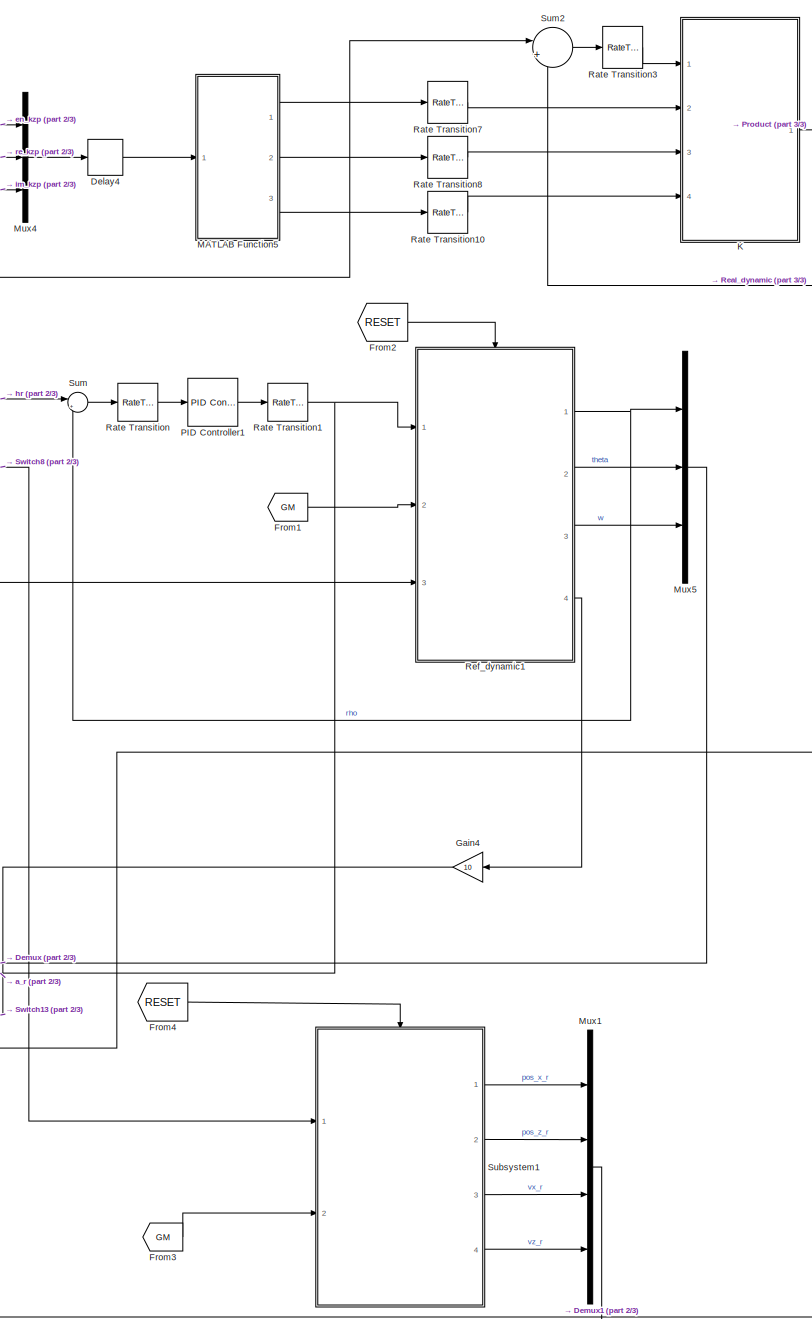
[diagram: root canvas - part 1/3, center side, full height]
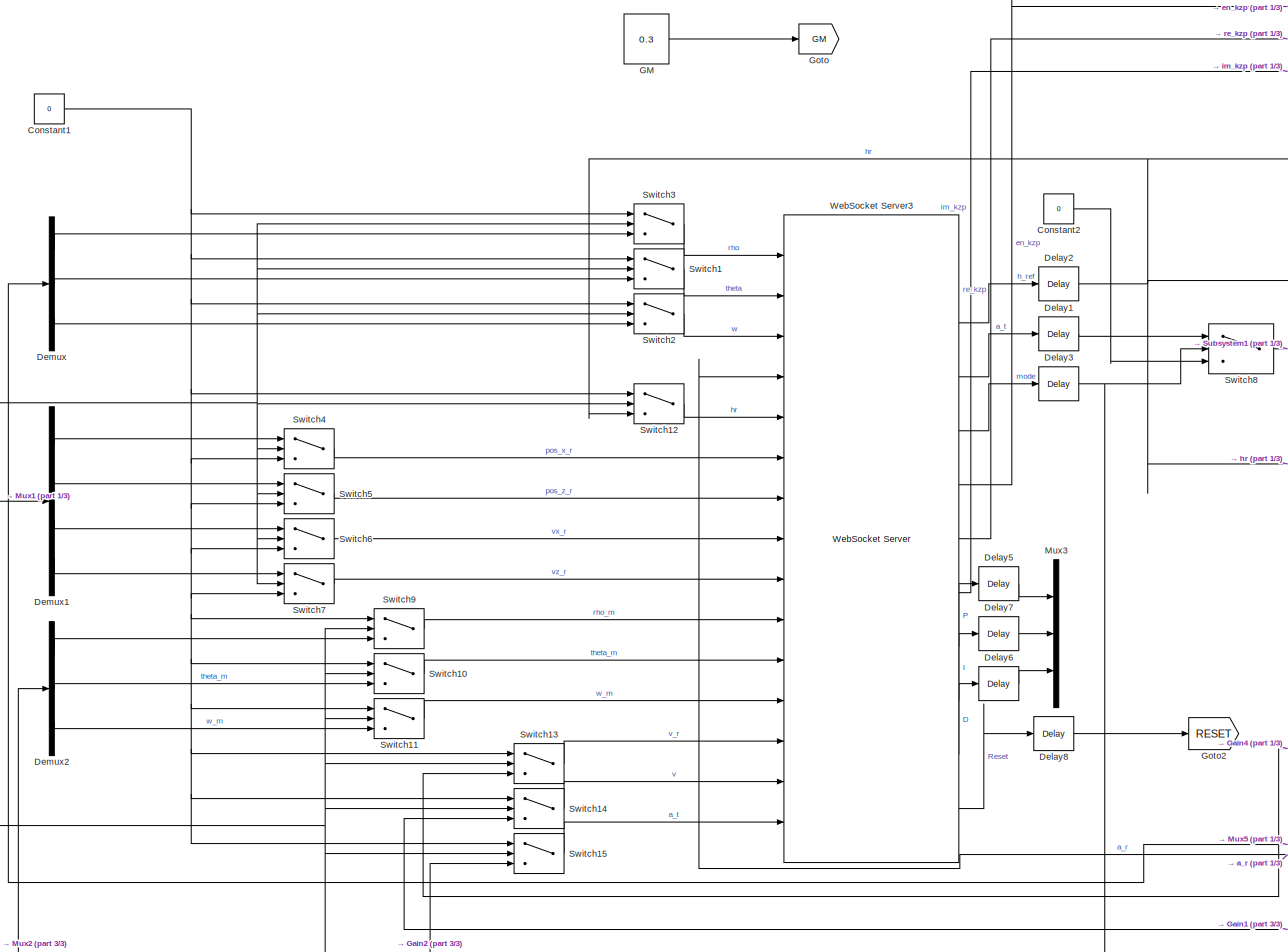
[diagram: root canvas - part 2/3, middle left region]
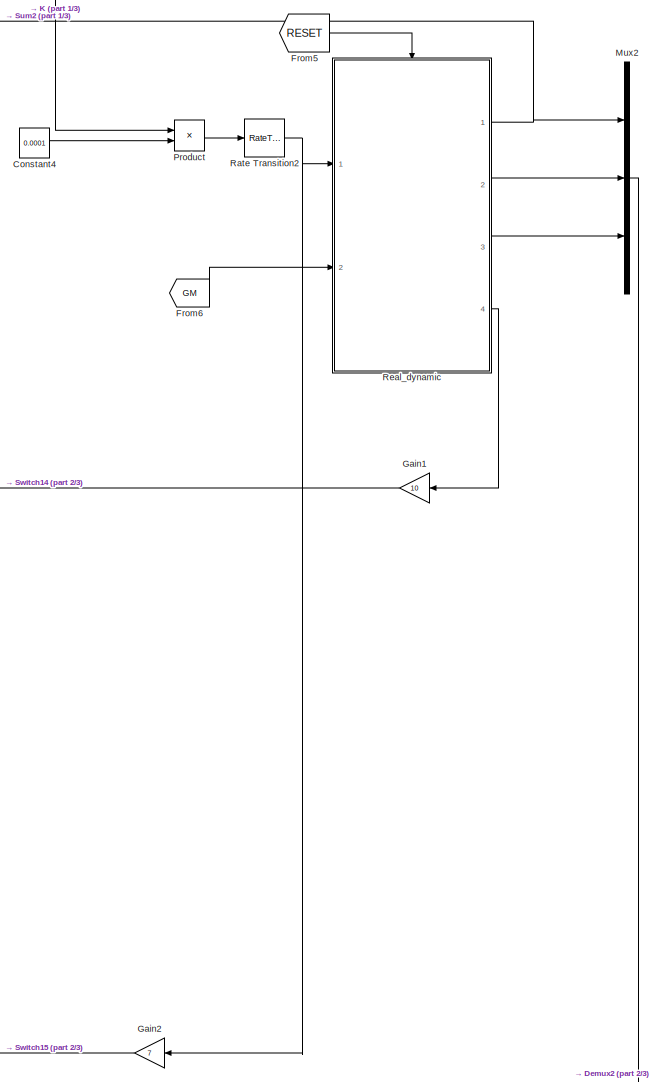
[diagram: root canvas - part 3/3, right side, full height]
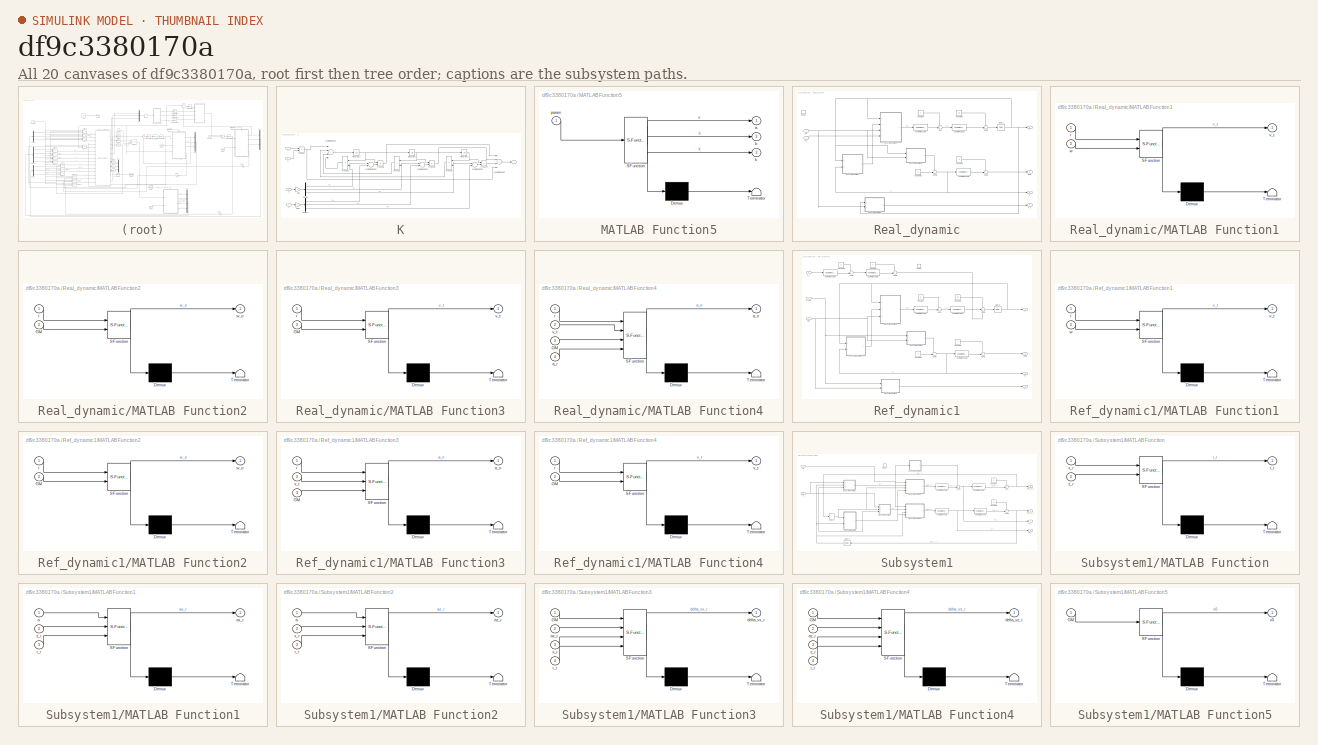
[diagram: thumbnail index - all 20 canvases of the model, root first then tree order]
MODEL slx_df9c3380170a
KIND model
CONFIG AbsTol = auto
CONFIG EnableMultiTasking = on
CONFIG FixedStep = 0.002
CONFIG MaxStep = auto
CONFIG MinStep = auto
CONFIG RelTol = 1e-3
CONFIG SampleTimeConstraint = Unconstrained
CONFIG Solver = FixedStepAuto
CONFIG SolverName = FixedStepAuto
CONFIG StartTime = 0.0
CONFIG StopTime = inf
BLOCK [Constant] Constant1
  Value = 0
BLOCK [Constant] Constant2
  Value = 0
BLOCK [Constant] Constant4
  Value = 0.0001
BLOCK [Delay] Delay1
  DelayLength = 1
  InitialCondition = 0
  InputPortMap = u0
  Ports = [1, 1]
BLOCK [Delay] Delay2
  DelayLength = 1
  InitialCondition = 36
  InputPortMap = u0
  Ports = [1, 1]
BLOCK [Delay] Delay3
  DelayLength = 1
  InitialCondition = 0
  InputPortMap = u0
  Ports = [1, 1]
BLOCK [Delay] Delay4
  DelayLength = 1
  InitialCondition = zeros(18,1)
  InputPortMap = u0
  Ports = [1, 1]
BLOCK [Delay] Delay5
  DelayLength = 1
  InitialCondition = 1
  InputPortMap = u0
  Ports = [1, 1]
BLOCK [Delay] Delay6
  DelayLength = 1
  InitialCondition = 1
  InputPortMap = u0
  Ports = [1, 1]
BLOCK [Delay] Delay7
  DelayLength = 1
  InitialCondition = 0
  InputPortMap = u0
  Ports = [1, 1]
BLOCK [Delay] Delay8
  DelayLength = 1
  InitialCondition = 0
  InputPortMap = u0
  Ports = [1, 1]
BLOCK [Demux] Demux
  DisplayOption = bar
  Outputs = 3
  Ports = [1, 3]
BLOCK [Demux] Demux1
  DisplayOption = bar
  Ports = [1, 4]
BLOCK [Demux] Demux2
  DisplayOption = bar
  Outputs = 3
  Ports = [1, 3]
BLOCK [From] From1
  GotoTag = GM
BLOCK [From] From2
  GotoTag = RESET
BLOCK [From] From3
  GotoTag = GM
BLOCK [From] From4
  GotoTag = RESET
BLOCK [From] From5
  GotoTag = RESET
BLOCK [From] From6
  GotoTag = GM
BLOCK [Constant] GM
  Value = 0.3
BLOCK [Gain] Gain1
  Gain = 10
  OutDataTypeStr = Inherit: Inherit via internal rule
  ParamDataTypeStr = Inherit: Inherit via internal rule
  SaturateOnIntegerOverflow = off
BLOCK [Gain] Gain2
  Gain = 7
  OutDataTypeStr = Inherit: Inherit via internal rule
  ParamDataTypeStr = Inherit: Inherit via internal rule
  SaturateOnIntegerOverflow = off
BLOCK [Gain] Gain4
  Gain = 10
  OutDataTypeStr = Inherit: Inherit via internal rule
  ParamDataTypeStr = Inherit: Inherit via internal rule
  SaturateOnIntegerOverflow = off
BLOCK [Goto] Goto
  GotoTag = GM
BLOCK [Goto] Goto2
  GotoTag = RESET
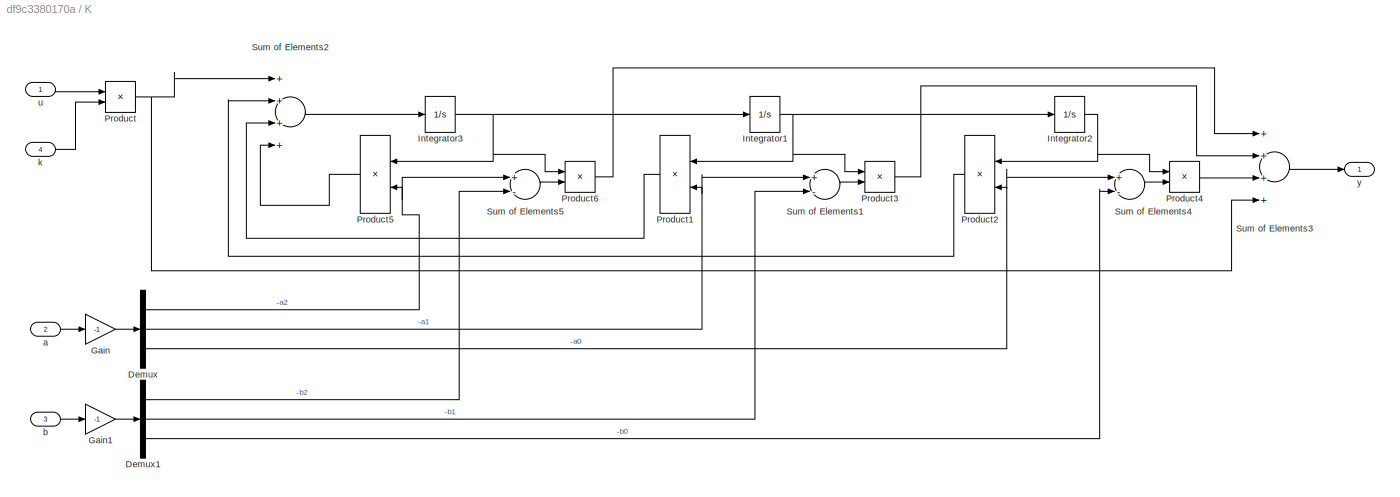
BLOCK [SubSystem] K
  Ports = [4, 1]
  RequestExecContextInheritance = off
  Variant = off
BLOCK [Demux] K/Demux
  DisplayOption = bar
  Outputs = 3
  Ports = [1, 3]
BLOCK [Demux] K/Demux1
  DisplayOption = bar
  Outputs = 3
  Ports = [1, 3]
BLOCK [Gain] K/Gain
  Gain = -1
  OutDataTypeStr = Inherit: Inherit via internal rule
  ParamDataTypeStr = Inherit: Inherit via internal rule
  SaturateOnIntegerOverflow = off
BLOCK [Gain] K/Gain1
  Gain = -1
  OutDataTypeStr = Inherit: Inherit via internal rule
  ParamDataTypeStr = Inherit: Inherit via internal rule
  SaturateOnIntegerOverflow = off
BLOCK [Integrator] K/Integrator1
  Ports = [1, 1]
BLOCK [Integrator] K/Integrator2
  Ports = [1, 1]
BLOCK [Integrator] K/Integrator3
  Ports = [1, 1]
BLOCK [Product] K/Product
  InputSameDT = off
  OutDataTypeStr = Inherit: Inherit via internal rule
  Ports = [2, 1]
  RndMeth = Floor
  SaturateOnIntegerOverflow = off
BLOCK [Product] K/Product1
  InputSameDT = off
  OutDataTypeStr = Inherit: Inherit via internal rule
  Ports = [2, 1]
  RndMeth = Floor
  SaturateOnIntegerOverflow = off
BLOCK [Product] K/Product2
  InputSameDT = off
  OutDataTypeStr = Inherit: Inherit via internal rule
  Ports = [2, 1]
  RndMeth = Floor
  SaturateOnIntegerOverflow = off
BLOCK [Product] K/Product3
  InputSameDT = off
  OutDataTypeStr = Inherit: Inherit via internal rule
  Ports = [2, 1]
  RndMeth = Floor
  SaturateOnIntegerOverflow = off
BLOCK [Product] K/Product4
  InputSameDT = off
  OutDataTypeStr = Inherit: Inherit via internal rule
  Ports = [2, 1]
  RndMeth = Floor
  SaturateOnIntegerOverflow = off
BLOCK [Product] K/Product5
  InputSameDT = off
  OutDataTypeStr = Inherit: Inherit via internal rule
  Ports = [2, 1]
  RndMeth = Floor
  SaturateOnIntegerOverflow = off
BLOCK [Product] K/Product6
  InputSameDT = off
  OutDataTypeStr = Inherit: Inherit via internal rule
  Ports = [2, 1]
  RndMeth = Floor
  SaturateOnIntegerOverflow = off
BLOCK [Sum] K/Sum of Elements1
  InputSameDT = off
  Inputs = +-
  OutDataTypeStr = Inherit: Inherit via internal rule
  Ports = [2, 1]
  SaturateOnIntegerOverflow = off
BLOCK [Sum] K/Sum of Elements2
  InputSameDT = off
  Inputs = ++++
  OutDataTypeStr = Inherit: Inherit via internal rule
  Ports = [4, 1]
  SaturateOnIntegerOverflow = off
BLOCK [Sum] K/Sum of Elements3
  InputSameDT = off
  Inputs = ++++
  OutDataTypeStr = Inherit: Inherit via internal rule
  Ports = [4, 1]
  SaturateOnIntegerOverflow = off
BLOCK [Sum] K/Sum of Elements4
  InputSameDT = off
  Inputs = +-
  OutDataTypeStr = Inherit: Inherit via internal rule
  Ports = [2, 1]
  SaturateOnIntegerOverflow = off
BLOCK [Sum] K/Sum of Elements5
  InputSameDT = off
  Inputs = +-
  OutDataTypeStr = Inherit: Inherit via internal rule
  Ports = [2, 1]
  SaturateOnIntegerOverflow = off
BLOCK [Inport] K/a
  IconDisplay = Port number
  Port = 2
BLOCK [Inport] K/b
  IconDisplay = Port number
  Port = 3
BLOCK [Inport] K/k
  IconDisplay = Port number
  Port = 4
BLOCK [Inport] K/u
  IconDisplay = Port number
BLOCK [Outport] K/y
  IconDisplay = Port number
BLOCK [SubSystem] MATLAB Function5
  ErrorFcn = Stateflow.Translate.translate
  PermitHierarchicalResolution = ExplicitOnly
  Ports = [1, 3]
  RequestExecContextInheritance = off
  SFBlockType = MATLAB Function
  TreatAsAtomicUnit = on
  Variant = off
BLOCK [Demux] MATLAB Function5/ Demux 
  Outputs = 1
  Ports = [1, 1]
BLOCK [S-Function] MATLAB Function5/ SFunction 
  EnableBusSupport = on
  FunctionName = sf_sfun
  PortCounts = [1 4]
  Ports = [1, 4]
  SFcnIsStateOwnerBlock = off
  SFunctionDeploymentMode = off
  Tag = Stateflow S-Function satellite_final9 25
BLOCK [Terminator] MATLAB Function5/ Terminator 
BLOCK [Outport] MATLAB Function5/a
  IconDisplay = Port number
BLOCK [Outport] MATLAB Function5/b
  IconDisplay = Port number
  Port = 2
BLOCK [Outport] MATLAB Function5/k
  IconDisplay = Port number
  Port = 3
BLOCK [Inport] MATLAB Function5/param
  IconDisplay = Port number
BLOCK [Mux] Mux1
  DisplayOption = bar
  Ports = [4, 1]
BLOCK [Mux] Mux2
  DisplayOption = bar
  Inputs = 3
  Ports = [3, 1]
BLOCK [Mux] Mux3
  DisplayOption = bar
  Inputs = 3
  Ports = [3, 1]
BLOCK [Mux] Mux4
  DisplayOption = bar
  Inputs = 3
  Ports = [3, 1]
BLOCK [Mux] Mux5
  DisplayOption = bar
  Inputs = 3
  Ports = [3, 1]
BLOCK [Reference] PID Controller1  REF=simulink/Continuous/PID Controller
  Ports = [1, 1]
  SourceBlock = simulink/Continuous/PID Controller
  SourceProductBaseCode = SL
  SourceProductName = Simulink
  SourceType = PID 1dof
BLOCK [Product] Product
  InputSameDT = off
  OutDataTypeStr = Inherit: Inherit via internal rule
  Ports = [2, 1]
  RndMeth = Floor
  SaturateOnIntegerOverflow = off
BLOCK [RateTransition] Rate Transition
BLOCK [RateTransition] Rate Transition1
BLOCK [RateTransition] Rate Transition10
BLOCK [RateTransition] Rate Transition2
BLOCK [RateTransition] Rate Transition3
BLOCK [RateTransition] Rate Transition7
BLOCK [RateTransition] Rate Transition8
BLOCK [SubSystem] Real_dynamic
  Ports = [2, 4, 0, 0, 0, 0, 0, 0, 1]
  RequestExecContextInheritance = off
  Variant = off
BLOCK [Constant] Real_dynamic/Constant
  Value = 0
BLOCK [Constant] Real_dynamic/Constant1
  Value = 36
BLOCK [Constant] Real_dynamic/Constant2
  Value = 0
BLOCK [Constant] Real_dynamic/Constant5
  Value = 0
BLOCK [Reference] Real_dynamic/Cumulative Sum1  REF=dspmathops/Cumulative
Sum
  Ports = [1, 1]
  SourceBlock = dspmathops/Cumulative\nSum
  SourceProductBaseCode = DS
  SourceProductName = DSP System Toolbox
  SourceType = Cumulative Sum
  UserDataPersistent = on
BLOCK [Reference] Real_dynamic/Cumulative Sum2  REF=dspmathops/Cumulative
Sum
  Ports = [1, 1]
  SourceBlock = dspmathops/Cumulative\nSum
  SourceProductBaseCode = DS
  SourceProductName = DSP System Toolbox
  SourceType = Cumulative Sum
  UserDataPersistent = on
BLOCK [Reference] Real_dynamic/Cumulative Sum3  REF=dspmathops/Cumulative
Sum
  Ports = [1, 1]
  SourceBlock = dspmathops/Cumulative\nSum
  SourceProductBaseCode = DS
  SourceProductName = DSP System Toolbox
  SourceType = Cumulative Sum
  UserDataPersistent = on
BLOCK [Delay] Real_dynamic/Delay2
  DelayLength = 1
  InitialCondition = 36
  InputPortMap = u0
  Ports = [1, 1]
BLOCK [Inport] Real_dynamic/GM
  IconDisplay = Port number
  Port = 2
BLOCK [SubSystem] Real_dynamic/MATLAB Function1
  ErrorFcn = Stateflow.Translate.translate
  PermitHierarchicalResolution = ExplicitOnly
  Ports = [2, 1]
  RequestExecContextInheritance = off
  SFBlockType = MATLAB Function
  TreatAsAtomicUnit = on
  Variant = off
BLOCK [Demux] Real_dynamic/MATLAB Function1/ Demux 
  Outputs = 1
  Ports = [1, 1]
BLOCK [S-Function] Real_dynamic/MATLAB Function1/ SFunction 
  EnableBusSupport = on
  FunctionName = sf_sfun
  PortCounts = [2 2]
  Ports = [2, 2]
  SFcnIsStateOwnerBlock = off
  SFunctionDeploymentMode = off
  Tag = Stateflow S-Function satellite_final9 12
BLOCK [Terminator] Real_dynamic/MATLAB Function1/ Terminator 
BLOCK [Inport] Real_dynamic/MATLAB Function1/r
  IconDisplay = Port number
BLOCK [Outport] Real_dynamic/MATLAB Function1/v_t
  IconDisplay = Port number
BLOCK [Inport] Real_dynamic/MATLAB Function1/w
  IconDisplay = Port number
  Port = 2
BLOCK [SubSystem] Real_dynamic/MATLAB Function2
  ErrorFcn = Stateflow.Translate.translate
  PermitHierarchicalResolution = ExplicitOnly
  Ports = [2, 1]
  RequestExecContextInheritance = off
  SFBlockType = MATLAB Function
  TreatAsAtomicUnit = on
  Variant = off
BLOCK [Demux] Real_dynamic/MATLAB Function2/ Demux 
  Outputs = 1
  Ports = [1, 1]
BLOCK [S-Function] Real_dynamic/MATLAB Function2/ SFunction 
  EnableBusSupport = on
  FunctionName = sf_sfun
  PortCounts = [2 2]
  Ports = [2, 2]
  SFcnIsStateOwnerBlock = off
  SFunctionDeploymentMode = off
  Tag = Stateflow S-Function satellite_final9 13
BLOCK [Terminator] Real_dynamic/MATLAB Function2/ Terminator 
BLOCK [Inport] Real_dynamic/MATLAB Function2/GM
  IconDisplay = Port number
  Port = 2
BLOCK [Inport] Real_dynamic/MATLAB Function2/r
  IconDisplay = Port number
BLOCK [Outport] Real_dynamic/MATLAB Function2/w_o
  IconDisplay = Port number
BLOCK [SubSystem] Real_dynamic/MATLAB Function3
  ErrorFcn = Stateflow.Translate.translate
  PermitHierarchicalResolution = ExplicitOnly
  Ports = [2, 1]
  RequestExecContextInheritance = off
  SFBlockType = MATLAB Function
  TreatAsAtomicUnit = on
  Variant = off
BLOCK [Demux] Real_dynamic/MATLAB Function3/ Demux 
  Outputs = 1
  Ports = [1, 1]
BLOCK [S-Function] Real_dynamic/MATLAB Function3/ SFunction 
  EnableBusSupport = on
  FunctionName = sf_sfun
  PortCounts = [2 2]
  Ports = [2, 2]
  SFcnIsStateOwnerBlock = off
  SFunctionDeploymentMode = off
  Tag = Stateflow S-Function satellite_final9 5
BLOCK [Terminator] Real_dynamic/MATLAB Function3/ Terminator 
BLOCK [Inport] Real_dynamic/MATLAB Function3/GM
  IconDisplay = Port number
  Port = 2
BLOCK [Inport] Real_dynamic/MATLAB Function3/r
  IconDisplay = Port number
BLOCK [Outport] Real_dynamic/MATLAB Function3/v_t
  IconDisplay = Port number
BLOCK [SubSystem] Real_dynamic/MATLAB Function4
  ErrorFcn = Stateflow.Translate.translate
  PermitHierarchicalResolution = ExplicitOnly
  Ports = [4, 1]
  RequestExecContextInheritance = off
  SFBlockType = MATLAB Function
  TreatAsAtomicUnit = on
  Variant = off
BLOCK [Demux] Real_dynamic/MATLAB Function4/ Demux 
  Outputs = 1
  Ports = [1, 1]
BLOCK [S-Function] Real_dynamic/MATLAB Function4/ SFunction 
  EnableBusSupport = on
  FunctionName = sf_sfun
  PortCounts = [4 2]
  Ports = [4, 2]
  SFcnIsStateOwnerBlock = off
  SFunctionDeploymentMode = off
  Tag = Stateflow S-Function satellite_final9 1
BLOCK [Terminator] Real_dynamic/MATLAB Function4/ Terminator 
BLOCK [Inport] Real_dynamic/MATLAB Function4/GM
  IconDisplay = Port number
  Port = 3
BLOCK [Outport] Real_dynamic/MATLAB Function4/a_n
  IconDisplay = Port number
BLOCK [Inport] Real_dynamic/MATLAB Function4/a_r
  IconDisplay = Port number
  Port = 4
BLOCK [Inport] Real_dynamic/MATLAB Function4/r
  IconDisplay = Port number
BLOCK [Inport] Real_dynamic/MATLAB Function4/v_t
  IconDisplay = Port number
  Port = 2
BLOCK [ResetPort] Real_dynamic/Reset
  DisableCoverage = on
  ResetTriggerType = either
BLOCK [Sum] Real_dynamic/Sum
  IconShape = round
  InputSameDT = off
  Inputs = ++|
  OutDataTypeStr = Inherit: Inherit via internal rule
  Ports = [2, 1]
  SaturateOnIntegerOverflow = off
BLOCK [Sum] Real_dynamic/Sum1
  IconShape = round
  InputSameDT = off
  Inputs = ++|
  OutDataTypeStr = Inherit: Inherit via internal rule
  Ports = [2, 1]
  SaturateOnIntegerOverflow = off
BLOCK [Sum] Real_dynamic/Sum2
  IconShape = round
  InputSameDT = off
  Inputs = ++|
  OutDataTypeStr = Inherit: Inherit via internal rule
  Ports = [2, 1]
  SaturateOnIntegerOverflow = off
BLOCK [Sum] Real_dynamic/Sum3
  IconShape = round
  InputSameDT = off
  Inputs = ++|
  OutDataTypeStr = Inherit: Inherit via internal rule
  Ports = [2, 1]
  SaturateOnIntegerOverflow = off
BLOCK [Inport] Real_dynamic/a_r
  IconDisplay = Port number
BLOCK [Outport] Real_dynamic/r
  IconDisplay = Port number
BLOCK [Outport] Real_dynamic/theta
  IconDisplay = Port number
  Port = 2
BLOCK [Outport] Real_dynamic/v_t
  IconDisplay = Port number
  Port = 4
BLOCK [Outport] Real_dynamic/w
  IconDisplay = Port number
  Port = 3
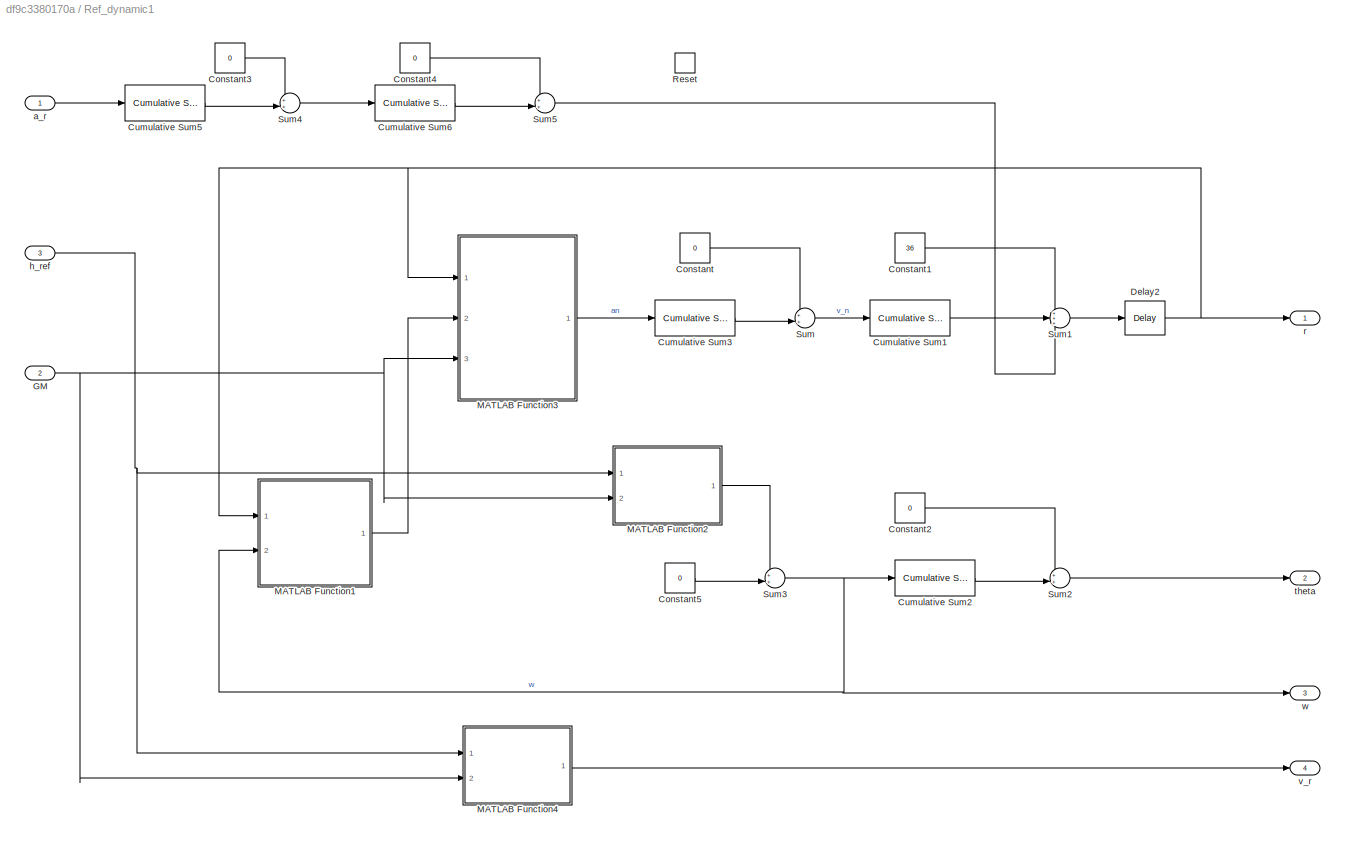
BLOCK [SubSystem] Ref_dynamic1
  Ports = [3, 4, 0, 0, 0, 0, 0, 0, 1]
  RequestExecContextInheritance = off
  Variant = off
BLOCK [Constant] Ref_dynamic1/Constant
  Value = 0
BLOCK [Constant] Ref_dynamic1/Constant1
  Value = 36
BLOCK [Constant] Ref_dynamic1/Constant2
  Value = 0
BLOCK [Constant] Ref_dynamic1/Constant3
  Value = 0
BLOCK [Constant] Ref_dynamic1/Constant4
  Value = 0
BLOCK [Constant] Ref_dynamic1/Constant5
  Value = 0
BLOCK [Reference] Ref_dynamic1/Cumulative Sum1  REF=dspmathops/Cumulative
Sum
  Ports = [1, 1]
  SourceBlock = dspmathops/Cumulative\nSum
  SourceProductBaseCode = DS
  SourceProductName = DSP System Toolbox
  SourceType = Cumulative Sum
  UserDataPersistent = on
BLOCK [Reference] Ref_dynamic1/Cumulative Sum2  REF=dspmathops/Cumulative
Sum
  Ports = [1, 1]
  SourceBlock = dspmathops/Cumulative\nSum
  SourceProductBaseCode = DS
  SourceProductName = DSP System Toolbox
  SourceType = Cumulative Sum
  UserDataPersistent = on
BLOCK [Reference] Ref_dynamic1/Cumulative Sum3  REF=dspmathops/Cumulative
Sum
  Ports = [1, 1]
  SourceBlock = dspmathops/Cumulative\nSum
  SourceProductBaseCode = DS
  SourceProductName = DSP System Toolbox
  SourceType = Cumulative Sum
  UserDataPersistent = on
BLOCK [Reference] Ref_dynamic1/Cumulative Sum5  REF=dspmathops/Cumulative
Sum
  Ports = [1, 1]
  SourceBlock = dspmathops/Cumulative\nSum
  SourceProductBaseCode = DS
  SourceProductName = DSP System Toolbox
  SourceType = Cumulative Sum
  UserDataPersistent = on
BLOCK [Reference] Ref_dynamic1/Cumulative Sum6  REF=dspmathops/Cumulative
Sum
  Ports = [1, 1]
  SourceBlock = dspmathops/Cumulative\nSum
  SourceProductBaseCode = DS
  SourceProductName = DSP System Toolbox
  SourceType = Cumulative Sum
  UserDataPersistent = on
BLOCK [Delay] Ref_dynamic1/Delay2
  DelayLength = 1
  InitialCondition = 36
  InputPortMap = u0
  Ports = [1, 1]
BLOCK [Inport] Ref_dynamic1/GM
  IconDisplay = Port number
  Port = 2
BLOCK [SubSystem] Ref_dynamic1/MATLAB Function1
  ErrorFcn = Stateflow.Translate.translate
  PermitHierarchicalResolution = ExplicitOnly
  Ports = [2, 1]
  RequestExecContextInheritance = off
  SFBlockType = MATLAB Function
  TreatAsAtomicUnit = on
  Variant = off
BLOCK [Demux] Ref_dynamic1/MATLAB Function1/ Demux 
  Outputs = 1
  Ports = [1, 1]
BLOCK [S-Function] Ref_dynamic1/MATLAB Function1/ SFunction 
  EnableBusSupport = on
  FunctionName = sf_sfun
  PortCounts = [2 2]
  Ports = [2, 2]
  SFcnIsStateOwnerBlock = off
  SFunctionDeploymentMode = off
  Tag = Stateflow S-Function satellite_final9 3
BLOCK [Terminator] Ref_dynamic1/MATLAB Function1/ Terminator 
BLOCK [Inport] Ref_dynamic1/MATLAB Function1/r
  IconDisplay = Port number
BLOCK [Outport] Ref_dynamic1/MATLAB Function1/v_t
  IconDisplay = Port number
BLOCK [Inport] Ref_dynamic1/MATLAB Function1/w
  IconDisplay = Port number
  Port = 2
BLOCK [SubSystem] Ref_dynamic1/MATLAB Function2
  ErrorFcn = Stateflow.Translate.translate
  PermitHierarchicalResolution = ExplicitOnly
  Ports = [2, 1]
  RequestExecContextInheritance = off
  SFBlockType = MATLAB Function
  TreatAsAtomicUnit = on
  Variant = off
BLOCK [Demux] Ref_dynamic1/MATLAB Function2/ Demux 
  Outputs = 1
  Ports = [1, 1]
BLOCK [S-Function] Ref_dynamic1/MATLAB Function2/ SFunction 
  EnableBusSupport = on
  FunctionName = sf_sfun
  PortCounts = [2 2]
  Ports = [2, 2]
  SFcnIsStateOwnerBlock = off
  SFunctionDeploymentMode = off
  Tag = Stateflow S-Function satellite_final9 4
BLOCK [Terminator] Ref_dynamic1/MATLAB Function2/ Terminator 
BLOCK [Inport] Ref_dynamic1/MATLAB Function2/GM
  IconDisplay = Port number
  Port = 2
BLOCK [Inport] Ref_dynamic1/MATLAB Function2/r
  IconDisplay = Port number
BLOCK [Outport] Ref_dynamic1/MATLAB Function2/w_o
  IconDisplay = Port number
BLOCK [SubSystem] Ref_dynamic1/MATLAB Function3
  ErrorFcn = Stateflow.Translate.translate
  PermitHierarchicalResolution = ExplicitOnly
  Ports = [3, 1]
  RequestExecContextInheritance = off
  SFBlockType = MATLAB Function
  TreatAsAtomicUnit = on
  Variant = off
BLOCK [Demux] Ref_dynamic1/MATLAB Function3/ Demux 
  Outputs = 1
  Ports = [1, 1]
BLOCK [S-Function] Ref_dynamic1/MATLAB Function3/ SFunction 
  EnableBusSupport = on
  FunctionName = sf_sfun
  PortCounts = [3 2]
  Ports = [3, 2]
  SFcnIsStateOwnerBlock = off
  SFunctionDeploymentMode = off
  Tag = Stateflow S-Function satellite_final9 18
BLOCK [Terminator] Ref_dynamic1/MATLAB Function3/ Terminator 
BLOCK [Inport] Ref_dynamic1/MATLAB Function3/GM
  IconDisplay = Port number
  Port = 3
BLOCK [Outport] Ref_dynamic1/MATLAB Function3/a_n
  IconDisplay = Port number
BLOCK [Inport] Ref_dynamic1/MATLAB Function3/r
  IconDisplay = Port number
BLOCK [Inport] Ref_dynamic1/MATLAB Function3/v_t
  IconDisplay = Port number
  Port = 2
BLOCK [SubSystem] Ref_dynamic1/MATLAB Function4
  ErrorFcn = Stateflow.Translate.translate
  PermitHierarchicalResolution = ExplicitOnly
  Ports = [2, 1]
  RequestExecContextInheritance = off
  SFBlockType = MATLAB Function
  TreatAsAtomicUnit = on
  Variant = off
BLOCK [Demux] Ref_dynamic1/MATLAB Function4/ Demux 
  Outputs = 1
  Ports = [1, 1]
BLOCK [S-Function] Ref_dynamic1/MATLAB Function4/ SFunction 
  EnableBusSupport = on
  FunctionName = sf_sfun
  PortCounts = [2 2]
  Ports = [2, 2]
  SFcnIsStateOwnerBlock = off
  SFunctionDeploymentMode = off
  Tag = Stateflow S-Function satellite_final9 2
BLOCK [Terminator] Ref_dynamic1/MATLAB Function4/ Terminator 
BLOCK [Inport] Ref_dynamic1/MATLAB Function4/GM
  IconDisplay = Port number
  Port = 2
BLOCK [Inport] Ref_dynamic1/MATLAB Function4/r
  IconDisplay = Port number
BLOCK [Outport] Ref_dynamic1/MATLAB Function4/v_t
  IconDisplay = Port number
BLOCK [ResetPort] Ref_dynamic1/Reset
  DisableCoverage = on
  ResetTriggerType = either
BLOCK [Sum] Ref_dynamic1/Sum
  IconShape = round
  InputSameDT = off
  Inputs = ++|
  OutDataTypeStr = Inherit: Inherit via internal rule
  Ports = [2, 1]
  SaturateOnIntegerOverflow = off
BLOCK [Sum] Ref_dynamic1/Sum1
  IconShape = round
  InputSameDT = off
  Inputs = +++
  OutDataTypeStr = Inherit: Inherit via internal rule
  Ports = [3, 1]
  SaturateOnIntegerOverflow = off
BLOCK [Sum] Ref_dynamic1/Sum2
  IconShape = round
  InputSameDT = off
  Inputs = ++|
  OutDataTypeStr = Inherit: Inherit via internal rule
  Ports = [2, 1]
  SaturateOnIntegerOverflow = off
BLOCK [Sum] Ref_dynamic1/Sum3
  IconShape = round
  InputSameDT = off
  Inputs = ++|
  OutDataTypeStr = Inherit: Inherit via internal rule
  Ports = [2, 1]
  SaturateOnIntegerOverflow = off
BLOCK [Sum] Ref_dynamic1/Sum4
  IconShape = round
  InputSameDT = off
  Inputs = ++|
  OutDataTypeStr = Inherit: Inherit via internal rule
  Ports = [2, 1]
  SaturateOnIntegerOverflow = off
BLOCK [Sum] Ref_dynamic1/Sum5
  IconShape = round
  InputSameDT = off
  Inputs = ++|
  OutDataTypeStr = Inherit: Inherit via internal rule
  Ports = [2, 1]
  SaturateOnIntegerOverflow = off
BLOCK [Inport] Ref_dynamic1/a_r
  IconDisplay = Port number
BLOCK [Inport] Ref_dynamic1/h_ref
  IconDisplay = Port number
  Port = 3
BLOCK [Outport] Ref_dynamic1/r
  IconDisplay = Port number
BLOCK [Outport] Ref_dynamic1/theta
  IconDisplay = Port number
  Port = 2
BLOCK [Outport] Ref_dynamic1/v_r
  IconDisplay = Port number
  Port = 4
BLOCK [Outport] Ref_dynamic1/w
  IconDisplay = Port number
  Port = 3
BLOCK [SubSystem] Subsystem1
  Ports = [2, 4, 0, 0, 0, 0, 0, 0, 1]
  RequestExecContextInheritance = off
  Variant = off
BLOCK [Constant] Subsystem1/Constant
  Value = 0
BLOCK [Constant] Subsystem1/Constant1
  Value = 36
BLOCK [Reference] Subsystem1/Cumulative Sum1  REF=dspmathops/Cumulative
Sum
  Ports = [1, 1]
  SourceBlock = dspmathops/Cumulative\nSum
  SourceProductBaseCode = DS
  SourceProductName = DSP System Toolbox
  SourceType = Cumulative Sum
  UserDataPersistent = on
BLOCK [Reference] Subsystem1/Cumulative Sum2  REF=dspmathops/Cumulative
Sum
  Ports = [1, 1]
  SourceBlock = dspmathops/Cumulative\nSum
  SourceProductBaseCode = DS
  SourceProductName = DSP System Toolbox
  SourceType = Cumulative Sum
  UserDataPersistent = on
BLOCK [Reference] Subsystem1/Cumulative Sum3  REF=dspmathops/Cumulative
Sum
  Ports = [1, 1]
  SourceBlock = dspmathops/Cumulative\nSum
  SourceProductBaseCode = DS
  SourceProductName = DSP System Toolbox
  SourceType = Cumulative Sum
  UserDataPersistent = on
BLOCK [Reference] Subsystem1/Cumulative Sum4  REF=dspmathops/Cumulative
Sum
  Ports = [1, 1]
  SourceBlock = dspmathops/Cumulative\nSum
  SourceProductBaseCode = DS
  SourceProductName = DSP System Toolbox
  SourceType = Cumulative Sum
  UserDataPersistent = on
BLOCK [Delay] Subsystem1/Delay1
  DelayLength = 1
  InitialCondition = 0
  InputPortMap = u0
  Ports = [1, 1]
BLOCK [Delay] Subsystem1/Delay2
  DelayLength = 1
  InitialCondition = 36
  InputPortMap = u0
  Ports = [1, 1]
BLOCK [Inport] Subsystem1/GM
  IconDisplay = Port number
  Port = 2
BLOCK [SubSystem] Subsystem1/MATLAB Function
  ErrorFcn = Stateflow.Translate.translate
  PermitHierarchicalResolution = ExplicitOnly
  Ports = [2, 1]
  RequestExecContextInheritance = off
  SFBlockType = MATLAB Function
  TreatAsAtomicUnit = on
  Variant = off
BLOCK [Demux] Subsystem1/MATLAB Function/ Demux 
  Outputs = 1
  Ports = [1, 1]
BLOCK [S-Function] Subsystem1/MATLAB Function/ SFunction 
  EnableBusSupport = on
  FunctionName = sf_sfun
  PortCounts = [2 2]
  Ports = [2, 2]
  SFcnIsStateOwnerBlock = off
  SFunctionDeploymentMode = off
  Tag = Stateflow S-Function satellite_final9 19
BLOCK [Terminator] Subsystem1/MATLAB Function/ Terminator 
BLOCK [Outport] Subsystem1/MATLAB Function/r_r
  IconDisplay = Port number
BLOCK [Inport] Subsystem1/MATLAB Function/x_r
  IconDisplay = Port number
BLOCK [Inport] Subsystem1/MATLAB Function/z_r
  IconDisplay = Port number
  Port = 2
BLOCK [SubSystem] Subsystem1/MATLAB Function1
  ErrorFcn = Stateflow.Translate.translate
  PermitHierarchicalResolution = ExplicitOnly
  Ports = [3, 1]
  RequestExecContextInheritance = off
  SFBlockType = MATLAB Function
  TreatAsAtomicUnit = on
  Variant = off
BLOCK [Demux] Subsystem1/MATLAB Function1/ Demux 
  Outputs = 1
  Ports = [1, 1]
BLOCK [S-Function] Subsystem1/MATLAB Function1/ SFunction 
  EnableBusSupport = on
  FunctionName = sf_sfun
  PortCounts = [3 2]
  Ports = [3, 2]
  SFcnIsStateOwnerBlock = off
  SFunctionDeploymentMode = off
  Tag = Stateflow S-Function satellite_final9 20
BLOCK [Terminator] Subsystem1/MATLAB Function1/ Terminator 
BLOCK [Inport] Subsystem1/MATLAB Function1/a
  IconDisplay = Port number
BLOCK [Outport] Subsystem1/MATLAB Function1/ax_r
  IconDisplay = Port number
BLOCK [Inport] Subsystem1/MATLAB Function1/r_r
  IconDisplay = Port number
  Port = 3
BLOCK [Inport] Subsystem1/MATLAB Function1/z_r
  IconDisplay = Port number
  Port = 2
BLOCK [SubSystem] Subsystem1/MATLAB Function2
  ErrorFcn = Stateflow.Translate.translate
  PermitHierarchicalResolution = ExplicitOnly
  Ports = [3, 1]
  RequestExecContextInheritance = off
  SFBlockType = MATLAB Function
  TreatAsAtomicUnit = on
  Variant = off
BLOCK [Demux] Subsystem1/MATLAB Function2/ Demux 
  Outputs = 1
  Ports = [1, 1]
BLOCK [S-Function] Subsystem1/MATLAB Function2/ SFunction 
  EnableBusSupport = on
  FunctionName = sf_sfun
  PortCounts = [3 2]
  Ports = [3, 2]
  SFcnIsStateOwnerBlock = off
  SFunctionDeploymentMode = off
  Tag = Stateflow S-Function satellite_final9 21
BLOCK [Terminator] Subsystem1/MATLAB Function2/ Terminator 
BLOCK [Inport] Subsystem1/MATLAB Function2/a
  IconDisplay = Port number
BLOCK [Outport] Subsystem1/MATLAB Function2/az_r
  IconDisplay = Port number
BLOCK [Inport] Subsystem1/MATLAB Function2/r_r
  IconDisplay = Port number
  Port = 3
BLOCK [Inport] Subsystem1/MATLAB Function2/x_r
  IconDisplay = Port number
  Port = 2
BLOCK [SubSystem] Subsystem1/MATLAB Function3
  ErrorFcn = Stateflow.Translate.translate
  PermitHierarchicalResolution = ExplicitOnly
  Ports = [4, 1]
  RequestExecContextInheritance = off
  SFBlockType = MATLAB Function
  TreatAsAtomicUnit = on
  Variant = off
BLOCK [Demux] Subsystem1/MATLAB Function3/ Demux 
  Outputs = 1
  Ports = [1, 1]
BLOCK [S-Function] Subsystem1/MATLAB Function3/ SFunction 
  EnableBusSupport = on
  FunctionName = sf_sfun
  PortCounts = [4 2]
  Ports = [4, 2]
  SFcnIsStateOwnerBlock = off
  SFunctionDeploymentMode = off
  Tag = Stateflow S-Function satellite_final9 22
BLOCK [Terminator] Subsystem1/MATLAB Function3/ Terminator 
BLOCK [Inport] Subsystem1/MATLAB Function3/GM
  IconDisplay = Port number
BLOCK [Inport] Subsystem1/MATLAB Function3/ax_r
  IconDisplay = Port number
  Port = 2
BLOCK [Outport] Subsystem1/MATLAB Function3/delta_vx_r
  IconDisplay = Port number
BLOCK [Inport] Subsystem1/MATLAB Function3/r_r
  IconDisplay = Port number
  Port = 4
BLOCK [Inport] Subsystem1/MATLAB Function3/x_r
  IconDisplay = Port number
  Port = 3
BLOCK [SubSystem] Subsystem1/MATLAB Function4
  ErrorFcn = Stateflow.Translate.translate
  PermitHierarchicalResolution = ExplicitOnly
  Ports = [4, 1]
  RequestExecContextInheritance = off
  SFBlockType = MATLAB Function
  TreatAsAtomicUnit = on
  Variant = off
BLOCK [Demux] Subsystem1/MATLAB Function4/ Demux 
  Outputs = 1
  Ports = [1, 1]
BLOCK [S-Function] Subsystem1/MATLAB Function4/ SFunction 
  EnableBusSupport = on
  FunctionName = sf_sfun
  PortCounts = [4 2]
  Ports = [4, 2]
  SFcnIsStateOwnerBlock = off
  SFunctionDeploymentMode = off
  Tag = Stateflow S-Function satellite_final9 23
BLOCK [Terminator] Subsystem1/MATLAB Function4/ Terminator 
BLOCK [Inport] Subsystem1/MATLAB Function4/GM
  IconDisplay = Port number
BLOCK [Inport] Subsystem1/MATLAB Function4/az_r
  IconDisplay = Port number
  Port = 2
BLOCK [Outport] Subsystem1/MATLAB Function4/delta_vz_r
  IconDisplay = Port number
BLOCK [Inport] Subsystem1/MATLAB Function4/r_r
  IconDisplay = Port number
  Port = 4
BLOCK [Inport] Subsystem1/MATLAB Function4/z_r
  IconDisplay = Port number
  Port = 3
BLOCK [SubSystem] Subsystem1/MATLAB Function5
  ErrorFcn = Stateflow.Translate.translate
  PermitHierarchicalResolution = ExplicitOnly
  Ports = [1, 1]
  RequestExecContextInheritance = off
  SFBlockType = MATLAB Function
  TreatAsAtomicUnit = on
  Variant = off
BLOCK [Demux] Subsystem1/MATLAB Function5/ Demux 
  Outputs = 1
  Ports = [1, 1]
BLOCK [S-Function] Subsystem1/MATLAB Function5/ SFunction 
  EnableBusSupport = on
  FunctionName = sf_sfun
  PortCounts = [1 2]
  Ports = [1, 2]
  SFcnIsStateOwnerBlock = off
  SFunctionDeploymentMode = off
  Tag = Stateflow S-Function satellite_final9 24
BLOCK [Terminator] Subsystem1/MATLAB Function5/ Terminator 
BLOCK [Inport] Subsystem1/MATLAB Function5/GM
  IconDisplay = Port number
BLOCK [Outport] Subsystem1/MATLAB Function5/v0
  IconDisplay = Port number
BLOCK [ResetPort] Subsystem1/Reset
  DisableCoverage = on
  ResetTriggerType = either
BLOCK [Sum] Subsystem1/Sum
  IconShape = round
  InputSameDT = off
  Inputs = ++|
  OutDataTypeStr = Inherit: Inherit via internal rule
  Ports = [2, 1]
  SaturateOnIntegerOverflow = off
BLOCK [Sum] Subsystem1/Sum1
  IconShape = round
  InputSameDT = off
  Inputs = ++|
  OutDataTypeStr = Inherit: Inherit via internal rule
  Ports = [2, 1]
  SaturateOnIntegerOverflow = off
BLOCK [Sum] Subsystem1/Sum2
  IconShape = round
  InputSameDT = off
  Inputs = ++|
  OutDataTypeStr = Inherit: Inherit via internal rule
  Ports = [2, 1]
  SaturateOnIntegerOverflow = off
BLOCK [Inport] Subsystem1/a
  IconDisplay = Port number
BLOCK [Outport] Subsystem1/pos_x_r
  IconDisplay = Port number
BLOCK [Outport] Subsystem1/pos_z_r
  IconDisplay = Port number
  Port = 2
BLOCK [Outport] Subsystem1/vx_r
  IconDisplay = Port number
  Port = 3
BLOCK [Outport] Subsystem1/vz_r
  IconDisplay = Port number
  Port = 4
BLOCK [Sum] Sum
  IconShape = round
  InputSameDT = off
  Inputs = |+-
  OutDataTypeStr = Inherit: Inherit via internal rule
  Ports = [2, 1]
  SaturateOnIntegerOverflow = off
BLOCK [Sum] Sum2
  IconShape = round
  InputSameDT = off
  Inputs = |+-
  OutDataTypeStr = Inherit: Inherit via internal rule
  Ports = [2, 1]
  SaturateOnIntegerOverflow = off
BLOCK [Switch] Switch1
  Criteria = u2 > Threshold
  InputSameDT = off
  SaturateOnIntegerOverflow = off
  Threshold = 0.5
BLOCK [Switch] Switch10
  Criteria = u2 > Threshold
  InputSameDT = off
  SaturateOnIntegerOverflow = off
  Threshold = 0.5
BLOCK [Switch] Switch11
  Criteria = u2 > Threshold
  InputSameDT = off
  SaturateOnIntegerOverflow = off
  Threshold = 0.5
BLOCK [Switch] Switch12
  Criteria = u2 > Threshold
  InputSameDT = off
  SaturateOnIntegerOverflow = off
  Threshold = 0.5
BLOCK [Switch] Switch13
  Criteria = u2 > Threshold
  InputSameDT = off
  SaturateOnIntegerOverflow = off
  Threshold = 0.5
BLOCK [Switch] Switch14
  Criteria = u2 > Threshold
  InputSameDT = off
  SaturateOnIntegerOverflow = off
  Threshold = 0.5
BLOCK [Switch] Switch15
  Criteria = u2 > Threshold
  InputSameDT = off
  SaturateOnIntegerOverflow = off
  Threshold = 0.5
BLOCK [Switch] Switch2
  Criteria = u2 > Threshold
  InputSameDT = off
  SaturateOnIntegerOverflow = off
  Threshold = 0.5
BLOCK [Switch] Switch3
  Criteria = u2 > Threshold
  InputSameDT = off
  SaturateOnIntegerOverflow = off
  Threshold = 0.5
BLOCK [Switch] Switch4
  Criteria = u2 > Threshold
  InputSameDT = off
  SaturateOnIntegerOverflow = off
  Threshold = 0.5
BLOCK [Switch] Switch5
  Criteria = u2 > Threshold
  InputSameDT = off
  SaturateOnIntegerOverflow = off
  Threshold = 0.5
BLOCK [Switch] Switch6
  Criteria = u2 > Threshold
  InputSameDT = off
  SaturateOnIntegerOverflow = off
  Threshold = 0.5
BLOCK [Switch] Switch7
  Criteria = u2 > Threshold
  InputSameDT = off
  SaturateOnIntegerOverflow = off
  Threshold = 0.5
BLOCK [Switch] Switch8
  Criteria = u2 > Threshold
  InputSameDT = off
  SaturateOnIntegerOverflow = off
  Threshold = 0.5
BLOCK [Switch] Switch9
  Criteria = u2 > Threshold
  InputSameDT = off
  SaturateOnIntegerOverflow = off
  Threshold = 0.5
BLOCK [Reference] WebSocket Server3  REF=WebSocketLibrary/WebSocket Server
  Ports = [15, 11]
  SourceBlock = WebSocketLibrary/WebSocket Server
  SourceType = WebSocket Server
NET Constant1:1 -> Switch10:1, Switch11:1, Switch12:1, Switch13:1, Switch14:1, Switch15:1, Switch1:1, Switch2:1, Switch3:1, Switch4:3, Switch5:3, Switch6:3, Switch7:3, Switch9:1
LINE Constant2:1 -> Switch8:3
LINE Constant4:1 -> Product:2
LINE Delay1:1 -> Switch8:1
NET Delay2:1 -> Ref_dynamic1:3, Sum2:1, Sum:1, Switch12:3
NET Delay3:1 -> Switch10:2, Switch11:2, Switch12:2, Switch13:2, Switch14:2, Switch15:2, Switch1:2, Switch2:2, Switch3:2, Switch4:2, Switch5:2, Switch6:2, Switch7:2, Switch8:2, Switch9:2
LINE Delay4:1 -> MATLAB Function5:1
LINE Delay5:1 -> Mux3:1
LINE Delay6:1 -> Mux3:3
LINE Delay7:1 -> Mux3:2
LINE Delay8:1 -> Goto2:1
LINE Demux1:1 -> Switch4:1
LINE Demux1:2 -> Switch5:1
LINE Demux1:3 -> Switch6:1
LINE Demux1:4 -> Switch7:1
LINE Demux2:1 -> Switch9:3
LINE Demux2:2 -> Switch10:3
LINE Demux2:3 -> Switch11:3
LINE Demux:1 -> Switch3:3
LINE Demux:2 -> Switch1:3
LINE Demux:3 -> Switch2:3
LINE From1:1 -> Ref_dynamic1:2
LINE From2:1 -> Ref_dynamic1:Reset
LINE From3:1 -> Subsystem1:2
LINE From4:1 -> Subsystem1:Reset
LINE From5:1 -> Real_dynamic:Reset
LINE From6:1 -> Real_dynamic:2
LINE GM:1 -> Goto:1
LINE Gain1:1 -> Switch14:3
LINE Gain2:1 -> Switch15:3
LINE Gain4:1 -> Switch13:3
LINE K/Demux1:1 -> K/Sum of Elements5:2
LINE K/Demux1:2 -> K/Sum of Elements1:2
LINE K/Demux1:3 -> K/Sum of Elements4:2
NET K/Demux:1 -> K/Product5:2, K/Sum of Elements5:1
NET K/Demux:2 -> K/Product1:2, K/Sum of Elements1:1
NET K/Demux:3 -> K/Product2:2, K/Sum of Elements4:1
LINE K/Gain1:1 -> K/Demux1:1
LINE K/Gain:1 -> K/Demux:1
NET K/Integrator1:1 -> K/Integrator2:1, K/Product1:1, K/Product3:1
NET K/Integrator2:1 -> K/Product2:1, K/Product4:1
NET K/Integrator3:1 -> K/Integrator1:1, K/Product5:1, K/Product6:1
LINE K/Product1:1 -> K/Sum of Elements2:3
LINE K/Product2:1 -> K/Sum of Elements2:2
LINE K/Product3:1 -> K/Sum of Elements3:2
LINE K/Product4:1 -> K/Sum of Elements3:3
LINE K/Product5:1 -> K/Sum of Elements2:4
LINE K/Product6:1 -> K/Sum of Elements3:1
NET K/Product:1 -> K/Sum of Elements2:1, K/Sum of Elements3:4
LINE K/Sum of Elements1:1 -> K/Product3:2
LINE K/Sum of Elements2:1 -> K/Integrator3:1
LINE K/Sum of Elements3:1 -> K/y:1
LINE K/Sum of Elements4:1 -> K/Product4:2
LINE K/Sum of Elements5:1 -> K/Product6:2
LINE K/a:1 -> K/Gain:1
LINE K/b:1 -> K/Gain1:1
LINE K/k:1 -> K/Product:2
LINE K/u:1 -> K/Product:1
LINE K:1 -> Product:1
LINE MATLAB Function5:1 -> Rate Transition7:1
LINE MATLAB Function5:2 -> Rate Transition8:1
LINE MATLAB Function5:3 -> Rate Transition10:1
LINE Mux1:1 -> Demux1:1
LINE Mux2:1 -> Demux2:1
LINE Mux4:1 -> Delay4:1
LINE Mux5:1 -> Demux:1
LINE PID Controller1:1 -> Rate Transition1:1
LINE Product:1 -> Rate Transition2:1
LINE Rate Transition10:1 -> K:4
NET Rate Transition1:1 -> Ref_dynamic1:1, WebSocket Server3:4
NET Rate Transition2:1 -> Gain2:1, Real_dynamic:1
LINE Rate Transition3:1 -> K:1
LINE Rate Transition7:1 -> K:2
LINE Rate Transition8:1 -> K:3
LINE Rate Transition:1 -> PID Controller1:1
LINE Real_dynamic/Constant1:1 -> Real_dynamic/Sum1:1
LINE Real_dynamic/Constant2:1 -> Real_dynamic/Sum2:1
LINE Real_dynamic/Constant5:1 -> Real_dynamic/Sum3:2
LINE Real_dynamic/Constant:1 -> Real_dynamic/Sum:1
LINE Real_dynamic/Cumulative Sum1:1 -> Real_dynamic/Sum1:2
LINE Real_dynamic/Cumulative Sum2:1 -> Real_dynamic/Sum2:2
LINE Real_dynamic/Cumulative Sum3:1 -> Real_dynamic/Sum:2
NET Real_dynamic/Delay2:1 -> Real_dynamic/MATLAB Function1:1, Real_dynamic/MATLAB Function2:1, Real_dynamic/MATLAB Function3:1, Real_dynamic/MATLAB Function4:1, Real_dynamic/r:1
NET Real_dynamic/GM:1 -> Real_dynamic/MATLAB Function2:2, Real_dynamic/MATLAB Function3:2, Real_dynamic/MATLAB Function4:3
LINE Real_dynamic/MATLAB Function1:1 -> Real_dynamic/MATLAB Function4:2
LINE Real_dynamic/MATLAB Function2:1 -> Real_dynamic/Sum3:1
LINE Real_dynamic/MATLAB Function3:1 -> Real_dynamic/v_t:1
LINE Real_dynamic/MATLAB Function4:1 -> Real_dynamic/Cumulative Sum3:1
LINE Real_dynamic/Sum1:1 -> Real_dynamic/Delay2:1
LINE Real_dynamic/Sum2:1 -> Real_dynamic/theta:1
NET Real_dynamic/Sum3:1 -> Real_dynamic/Cumulative Sum2:1, Real_dynamic/MATLAB Function1:2, Real_dynamic/w:1
LINE Real_dynamic/Sum:1 -> Real_dynamic/Cumulative Sum1:1
LINE Real_dynamic/a_r:1 -> Real_dynamic/MATLAB Function4:4
NET Real_dynamic:1 -> Mux2:1, Sum2:2
LINE Real_dynamic:2 -> Mux2:2
LINE Real_dynamic:3 -> Mux2:3
LINE Real_dynamic:4 -> Gain1:1
LINE Ref_dynamic1/Constant1:1 -> Ref_dynamic1/Sum1:1
LINE Ref_dynamic1/Constant2:1 -> Ref_dynamic1/Sum2:1
LINE Ref_dynamic1/Constant3:1 -> Ref_dynamic1/Sum4:1
LINE Ref_dynamic1/Constant4:1 -> Ref_dynamic1/Sum5:1
LINE Ref_dynamic1/Constant5:1 -> Ref_dynamic1/Sum3:2
LINE Ref_dynamic1/Constant:1 -> Ref_dynamic1/Sum:1
LINE Ref_dynamic1/Cumulative Sum1:1 -> Ref_dynamic1/Sum1:2
LINE Ref_dynamic1/Cumulative Sum2:1 -> Ref_dynamic1/Sum2:2
LINE Ref_dynamic1/Cumulative Sum3:1 -> Ref_dynamic1/Sum:2
LINE Ref_dynamic1/Cumulative Sum5:1 -> Ref_dynamic1/Sum4:2
LINE Ref_dynamic1/Cumulative Sum6:1 -> Ref_dynamic1/Sum5:2
NET Ref_dynamic1/Delay2:1 -> Ref_dynamic1/MATLAB Function1:1, Ref_dynamic1/MATLAB Function3:1, Ref_dynamic1/r:1
NET Ref_dynamic1/GM:1 -> Ref_dynamic1/MATLAB Function2:2, Ref_dynamic1/MATLAB Function3:3, Ref_dynamic1/MATLAB Function4:2
LINE Ref_dynamic1/MATLAB Function1:1 -> Ref_dynamic1/MATLAB Function3:2
LINE Ref_dynamic1/MATLAB Function2:1 -> Ref_dynamic1/Sum3:1
LINE Ref_dynamic1/MATLAB Function3:1 -> Ref_dynamic1/Cumulative Sum3:1
LINE Ref_dynamic1/MATLAB Function4:1 -> Ref_dynamic1/v_r:1
LINE Ref_dynamic1/Sum1:1 -> Ref_dynamic1/Delay2:1
LINE Ref_dynamic1/Sum2:1 -> Ref_dynamic1/theta:1
NET Ref_dynamic1/Sum3:1 -> Ref_dynamic1/Cumulative Sum2:1, Ref_dynamic1/MATLAB Function1:2, Ref_dynamic1/w:1
LINE Ref_dynamic1/Sum4:1 -> Ref_dynamic1/Cumulative Sum6:1
LINE Ref_dynamic1/Sum5:1 -> Ref_dynamic1/Sum1:3
LINE Ref_dynamic1/Sum:1 -> Ref_dynamic1/Cumulative Sum1:1
LINE Ref_dynamic1/a_r:1 -> Ref_dynamic1/Cumulative Sum5:1
NET Ref_dynamic1/h_ref:1 -> Ref_dynamic1/MATLAB Function2:1, Ref_dynamic1/MATLAB Function4:1
NET Ref_dynamic1:1 -> Mux5:1, Sum:2
LINE Ref_dynamic1:2 -> Mux5:2
LINE Ref_dynamic1:3 -> Mux5:3
LINE Ref_dynamic1:4 -> Gain4:1
LINE Subsystem1/Constant1:1 -> Subsystem1/Sum1:1
LINE Subsystem1/Constant:1 -> Subsystem1/Sum:1
LINE Subsystem1/Cumulative Sum1:1 -> Subsystem1/Sum2:2
NET Subsystem1/Cumulative Sum2:1 -> Subsystem1/Cumulative Sum4:1, Subsystem1/vz_r:1
LINE Subsystem1/Cumulative Sum3:1 -> Subsystem1/Sum:2
LINE Subsystem1/Cumulative Sum4:1 -> Subsystem1/Sum1:2
NET Subsystem1/Delay1:1 -> Subsystem1/MATLAB Function2:2, Subsystem1/MATLAB Function3:3, Subsystem1/MATLAB Function:1
NET Subsystem1/Delay2:1 -> Subsystem1/MATLAB Function1:2, Subsystem1/MATLAB Function4:3, Subsystem1/MATLAB Function:2
NET Subsystem1/GM:1 -> Subsystem1/MATLAB Function3:1, Subsystem1/MATLAB Function4:1, Subsystem1/MATLAB Function5:1
LINE Subsystem1/MATLAB Function1:1 -> Subsystem1/MATLAB Function3:2
LINE Subsystem1/MATLAB Function2:1 -> Subsystem1/MATLAB Function4:2
LINE Subsystem1/MATLAB Function3:1 -> Subsystem1/Cumulative Sum1:1
LINE Subsystem1/MATLAB Function4:1 -> Subsystem1/Cumulative Sum2:1
LINE Subsystem1/MATLAB Function5:1 -> Subsystem1/Sum2:1
NET Subsystem1/MATLAB Function:1 -> Subsystem1/MATLAB Function1:3, Subsystem1/MATLAB Function2:3, Subsystem1/MATLAB Function3:4, Subsystem1/MATLAB Function4:4
NET Subsystem1/Sum1:1 -> Subsystem1/Delay2:1, Subsystem1/pos_z_r:1
NET Subsystem1/Sum2:1 -> Subsystem1/Cumulative Sum3:1, Subsystem1/vx_r:1
NET Subsystem1/Sum:1 -> Subsystem1/Delay1:1, Subsystem1/pos_x_r:1
NET Subsystem1/a:1 -> Subsystem1/MATLAB Function1:1, Subsystem1/MATLAB Function2:1
LINE Subsystem1:1 -> Mux1:1
LINE Subsystem1:2 -> Mux1:2
LINE Subsystem1:3 -> Mux1:3
LINE Subsystem1:4 -> Mux1:4
LINE Sum2:1 -> Rate Transition3:1
LINE Sum:1 -> Rate Transition:1
LINE Switch10:1 -> WebSocket Server3:11
LINE Switch11:1 -> WebSocket Server3:12
LINE Switch12:1 -> WebSocket Server3:5
LINE Switch13:1 -> WebSocket Server3:13
LINE Switch14:1 -> WebSocket Server3:14
LINE Switch15:1 -> WebSocket Server3:15
LINE Switch1:1 -> WebSocket Server3:2
LINE Switch2:1 -> WebSocket Server3:3
LINE Switch3:1 -> WebSocket Server3:1
LINE Switch4:1 -> WebSocket Server3:6
LINE Switch5:1 -> WebSocket Server3:7
LINE Switch6:1 -> WebSocket Server3:8
LINE Switch7:1 -> WebSocket Server3:9
LINE Switch8:1 -> Subsystem1:1
LINE Switch9:1 -> WebSocket Server3:10
LINE WebSocket Server3:10 -> Delay6:1
LINE WebSocket Server3:11 -> Delay8:1
LINE WebSocket Server3:2 -> Delay2:1
LINE WebSocket Server3:3 -> Delay1:1
LINE WebSocket Server3:4 -> Delay3:1
LINE WebSocket Server3:5 -> Mux4:1
LINE WebSocket Server3:6 -> Mux4:2
LINE WebSocket Server3:7 -> Mux4:3
LINE WebSocket Server3:8 -> Delay5:1
LINE WebSocket Server3:9 -> Delay7:1
note: NET lines group one-source signal fan-out (src -> all destinations, sorted); 1:1 wires keep LINE
CHART Real_dynamic/MATLAB Function4 states=1 transitions=1
  STATE_LABEL 'eML_blk_kernel()'
  STATE_LABEL 'SCRIPT:\nfunction a_n = fcn(r,v_t,GM,a_r)\n\na_n = (v_t)^2/r - GM/r^2 + a_r;'
CHART Ref_dynamic1/MATLAB Function4 states=1 transitions=1
  STATE_LABEL 'eML_blk_kernel()'
  STATE_LABEL 'SCRIPT:\nfunction v_t = fcn(r,GM)\n\nv_t = sqrt(GM/r);'
CHART Ref_dynamic1/MATLAB Function1 states=1 transitions=1
  STATE_LABEL 'eML_blk_kernel()'
  STATE_LABEL 'SCRIPT:\nfunction v_t = fcn(r,w)\n\nv_t = w*r;'
CHART Ref_dynamic1/MATLAB Function2 states=1 transitions=1
  STATE_LABEL 'eML_blk_kernel()'
  STATE_LABEL 'SCRIPT:\nfunction w_o = fcn(r,GM)\n\nw_o = sqrt(GM/36)/r;'
CHART Real_dynamic/MATLAB Function3 states=1 transitions=1
  STATE_LABEL 'eML_blk_kernel()'
  STATE_LABEL 'SCRIPT:\nfunction v_t = fcn(r,GM)\n\nv_t = sqrt(GM/r);'
CHART Real_dynamic/MATLAB Function1 states=1 transitions=1
  STATE_LABEL 'eML_blk_kernel()'
  STATE_LABEL 'SCRIPT:\nfunction v_t = fcn(r,w)\n\nv_t = w*r;'
CHART Real_dynamic/MATLAB Function2 states=1 transitions=1
  STATE_LABEL 'eML_blk_kernel()'
  STATE_LABEL 'SCRIPT:\nfunction w_o = fcn(r,GM)\n\nw_o = sqrt(GM/36)/r;'
CHART Ref_dynamic1/MATLAB Function3 states=1 transitions=1
  STATE_LABEL 'eML_blk_kernel()'
  STATE_LABEL 'SCRIPT:\nfunction a_n = fcn(r,v_t,GM)\n\na_n = 0;'
CHART Subsystem1/MATLAB Function states=1 transitions=1
  STATE_LABEL 'eML_blk_kernel()'
  STATE_LABEL 'SCRIPT:\nfunction r_r = fcn(x_r,z_r)\nr_r=sqrt(x_r^2+z_r^2);'
CHART Subsystem1/MATLAB Function1 states=1 transitions=1
  STATE_LABEL 'eML_blk_kernel()'
  STATE_LABEL 'SCRIPT:\nfunction ax_r = fcn(a,z_r,r_r)\nax_r = a*z_r/r_r;'
CHART Subsystem1/MATLAB Function2 states=1 transitions=1
  STATE_LABEL 'eML_blk_kernel()'
  STATE_LABEL 'SCRIPT:\nfunction az_r = fcn(a,x_r,r_r)\naz_r=-a*x_r/r_r;'
CHART Subsystem1/MATLAB Function3 states=1 transitions=1
  STATE_LABEL 'eML_blk_kernel()'
  STATE_LABEL 'SCRIPT:\nfunction delta_vx_r = fcn(GM,ax_r,x_r,r_r)\ndelta_vx_r = ax_r-GM*x_r/r_r/r_r/r_r;'
CHART Subsystem1/MATLAB Function4 states=1 transitions=1
  STATE_LABEL 'eML_blk_kernel()'
  STATE_LABEL 'SCRIPT:\nfunction delta_vz_r = fcn(GM,az_r,z_r,r_r)\ndelta_vz_r = az_r-GM*z_r/r_r/r_r/r_r;'
CHART Subsystem1/MATLAB Function5 states=1 transitions=1
  STATE_LABEL 'eML_blk_kernel()'
  STATE_LABEL 'SCRIPT:\nfunction v0 = fcn(GM)\nv0=sqrt(GM/36);'
CHART MATLAB Function5 states=1 transitions=1
  STATE_LABEL 'eML_blk_kernel()'
  STATE_LABEL 'SCRIPT:\nfunction [a,b,k] = tfcoeff(param)\n\nu=param;\na=zeros(1,3);\nb=zeros(1,3);\nk=1;\n\npersistent u_last\nif isempty(u_last), u_last=zeros(18,1);end;\n\nif 1 %u~=u_last\n    u_last=u;\n    \n    % BUILD CHAR. POLYNOMIAL COMPONENTS\n    z=[999i,999i,999i];\n    kz=1;\n    for i=1:3\n        if u(i)==1\n            z(i-0 ) = u(i+6 ) + u(i+12)*1i ;\n        else\n            z(i-0 ) = -100;\n            kz = kz/100...<+338ch>'
